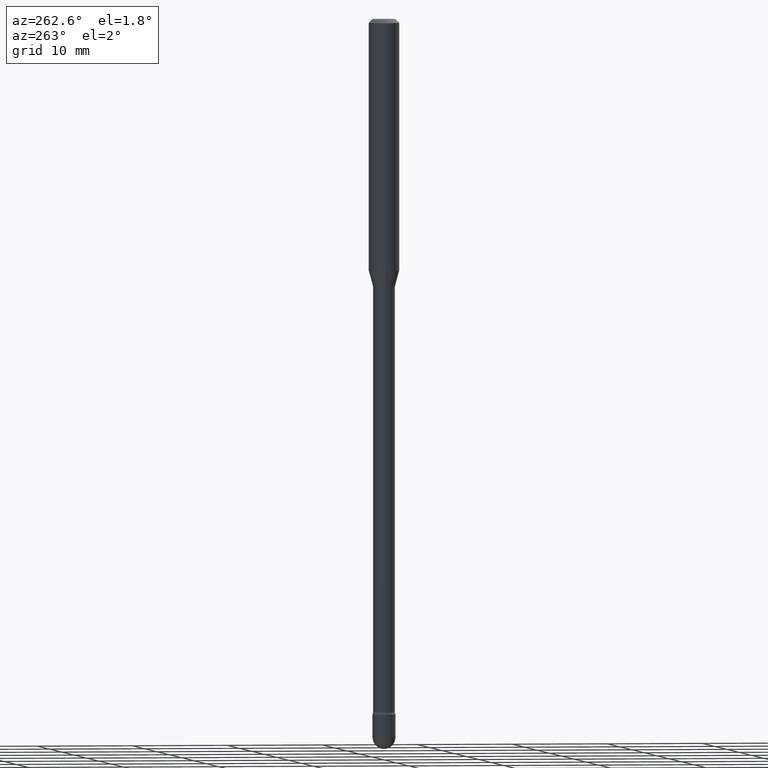
[diagram: clean part render]
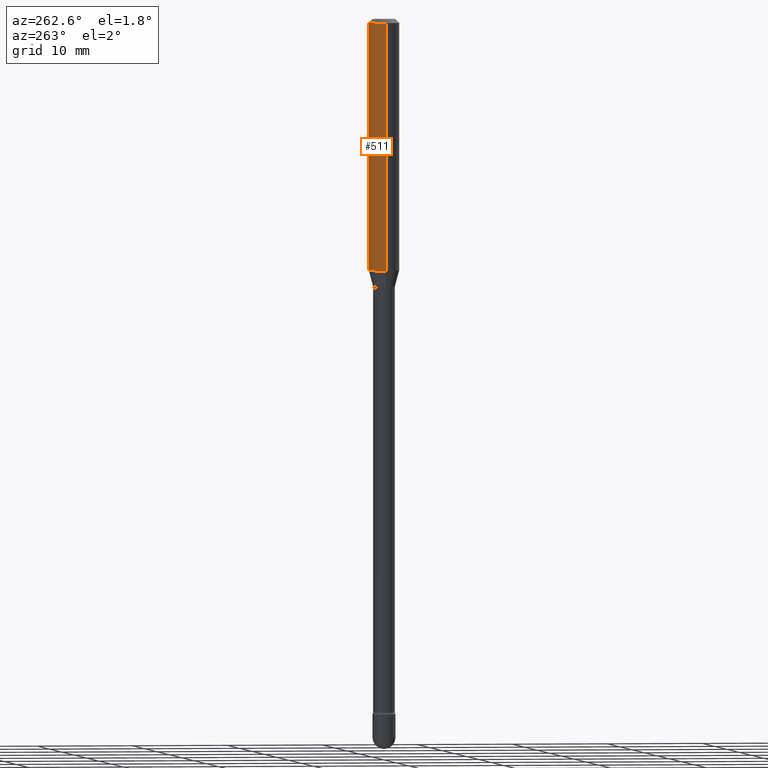
[diagram: same view with one face highlighted and labeled with its STEP entity id]
A machine part, auxiliary view. The second image highlights one B-rep face of the part: STEP entity #511.
In plain terms, the highlighted cylindrical surface (edge-blend (fillet) strip) has radius 1.5875 mm, axis along (-0, 0, 1).
Its self-contained STEP definition (entity closure, byte-faithful):
#4 = EDGE_CURVE ( 'NONE', #128, #332, #480, .T. ) ;
#43 = CIRCLE ( 'NONE', #371, 0.06250000000000000000 ) ;
#63 = DIRECTION ( 'NONE',  ( -2.445468806185136877E-29, 3.491481338843145188E-15, 1.000000000000000000 ) ) ;
#78 = ORIENTED_EDGE ( 'NONE', *, *, #4, .F. ) ;
#121 = CARTESIAN_POINT ( 'NONE',  ( -1.169113584055446105E-44, 1.669184350826100908E-30, 4.780733988912460139E-16 ) ) ;
#128 = VERTEX_POINT ( 'NONE', #524 ) ;
#132 = VERTEX_POINT ( 'NONE', #407 ) ;
#148 = CARTESIAN_POINT ( 'NONE',  ( 0.06250000000000000000, -4.364351673553899931E-16, 4.780733988912490708E-16 ) ) ;
#174 = FACE_OUTER_BOUND ( 'NONE', #426, .T. ) ;
#231 = CIRCLE ( 'NONE', #448, 0.06250000000000000000 ) ;
#241 = CARTESIAN_POINT ( 'NONE',  ( 2.527105629884462696E-29, -3.608037087085655034E-15, -1.033382893084895837 ) ) ;
#250 = CYLINDRICAL_SURFACE ( 'NONE', #491, 0.06250000000000000000 ) ;
#279 = EDGE_CURVE ( 'NONE', #332, #424, #231, .T. ) ;
#297 = CARTESIAN_POINT ( 'NONE',  ( -0.06250000000000000000, 4.440892098500642925E-16, 4.780733988912429571E-16 ) ) ;
#317 = DIRECTION ( 'NONE',  ( -2.445468806185136597E-29, 3.491481338843145583E-15, 1.000000000000000000 ) ) ;
#332 = VERTEX_POINT ( 'NONE', #537 ) ;
#353 = EDGE_CURVE ( 'NONE', #128, #132, #43, .T. ) ;
#371 = AXIS2_PLACEMENT_3D ( 'NONE', #241, #492, #498 ) ;
#390 = VECTOR ( 'NONE', #63, 39.37007874015748143 ) ;
#396 = DIRECTION ( 'NONE',  ( -2.445468806185136877E-29, 3.491481338843145188E-15, 1.000000000000000000 ) ) ;
#407 = CARTESIAN_POINT ( 'NONE',  ( -0.06250000000000000000, -3.163947877235592418E-15, -1.033382893084895837 ) ) ;
#420 = LINE ( 'NONE', #297, #390 ) ;
#424 = VERTEX_POINT ( 'NONE', #535 ) ;
#426 = EDGE_LOOP ( 'NONE', ( #504, #501, #449, #78 ) ) ;
#443 = CARTESIAN_POINT ( 'NONE',  ( 3.668203209277725232E-31, -5.237222008264747365E-17, -0.01500000000000008271 ) ) ;
#445 = DIRECTION ( 'NONE',  ( 1.000000000000000000, -6.982962677686266711E-15, 0.000000000000000000 ) ) ;
#448 = AXIS2_PLACEMENT_3D ( 'NONE', #443, #317, #445 ) ;
#449 = ORIENTED_EDGE ( 'NONE', *, *, #279, .F. ) ;
#457 = DIRECTION ( 'NONE',  ( 1.000000000000000000, -6.982962677686266711E-15, 4.852736867747366207E-29 ) ) ;
#480 = LINE ( 'NONE', #148, #562 ) ;
#491 = AXIS2_PLACEMENT_3D ( 'NONE', #121, #550, #457 ) ;
#492 = DIRECTION ( 'NONE',  ( -2.445468806185136597E-29, 3.491481338843145583E-15, 1.000000000000000000 ) ) ;
#498 = DIRECTION ( 'NONE',  ( 1.000000000000000000, -6.982962677686270655E-15, 0.000000000000000000 ) ) ;
#501 = ORIENTED_EDGE ( 'NONE', *, *, #554, .T. ) ;
#504 = ORIENTED_EDGE ( 'NONE', *, *, #353, .T. ) ;
#511 = ADVANCED_FACE ( 'NONE', ( #174 ), #250, .T. ) ;
#524 = CARTESIAN_POINT ( 'NONE',  ( 0.06250000000000000000, -4.044472254441047492E-15, -1.033382893084895837 ) ) ;
#535 = CARTESIAN_POINT ( 'NONE',  ( -0.06250000000000000000, -1.386115443734088835E-15, -0.01500000000000008271 ) ) ;
#537 = CARTESIAN_POINT ( 'NONE',  ( 0.06250000000000000000, -4.888073874380391431E-16, -0.01500000000000008271 ) ) ;
#550 = DIRECTION ( 'NONE',  ( -2.445468806185136597E-29, 3.491481338843145583E-15, 1.000000000000000000 ) ) ;
#554 = EDGE_CURVE ( 'NONE', #132, #424, #420, .T. ) ;
#562 = VECTOR ( 'NONE', #396, 39.37007874015748143 ) ;